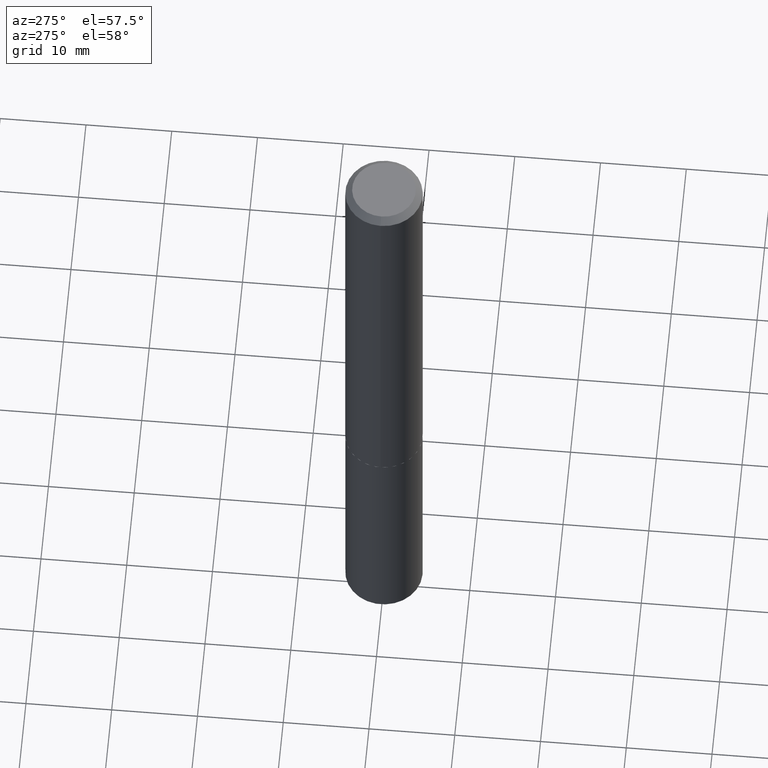
[diagram: clean part render]
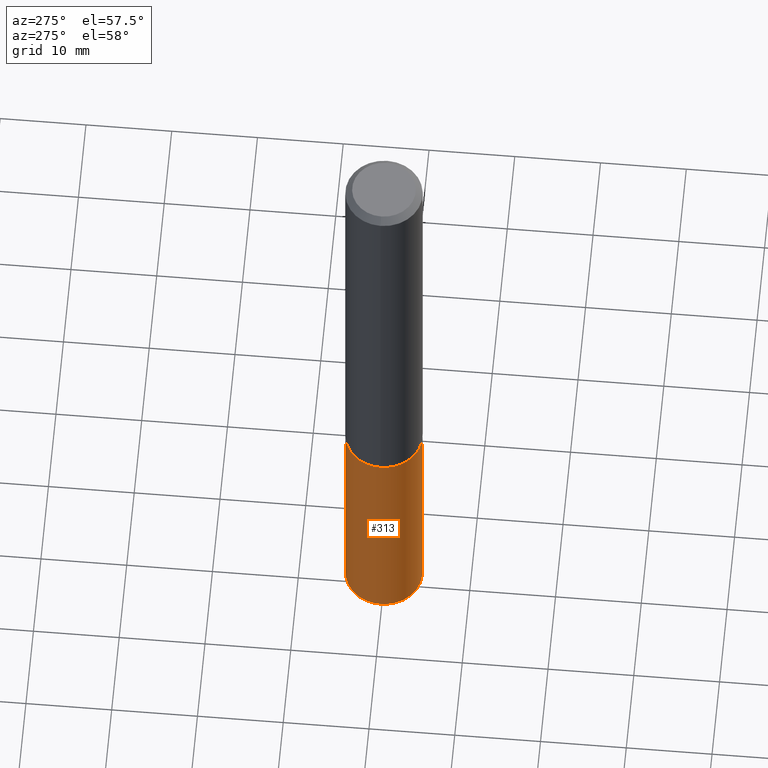
[diagram: same view with one face highlighted and labeled with its STEP entity id]
A machine part, auxiliary view. The second image highlights one B-rep face of the part: STEP entity #313.
In plain terms, the highlighted cylindrical surface (partial cylindrical patch) has radius 4.4996 mm, axis along (-0, 0, 1).
Its self-contained STEP definition (entity closure, byte-faithful):
#8 = DIRECTION ( 'NONE',  ( -6.982962677686265922E-15, -1.000000000000000000, 3.084220145260246224E-15 ) ) ;
#11 = CARTESIAN_POINT ( 'NONE',  ( 1.258726456399068374E-15, 0.1771499999999927299, -2.086600000000001121 ) ) ;
#13 = ORIENTED_EDGE ( 'NONE', *, *, #295, .F. ) ;
#35 = AXIS2_PLACEMENT_3D ( 'NONE', #359, #360, #269 ) ;
#45 = EDGE_CURVE ( 'NONE', #165, #354, #181, .T. ) ;
#67 = CARTESIAN_POINT ( 'NONE',  ( 1.258726456399096773E-15, 0.1771499999999885666, -3.251244819550088927 ) ) ;
#75 = ORIENTED_EDGE ( 'NONE', *, *, #45, .T. ) ;
#78 = ORIENTED_EDGE ( 'NONE', *, *, #267, .T. ) ;
#88 = VECTOR ( 'NONE', #89, 39.37007874015748143 ) ;
#89 = DIRECTION ( 'NONE',  ( -2.444942858903587164E-29, 3.492234525285384162E-15, 1.000000000000000000 ) ) ;
#119 = AXIS2_PLACEMENT_3D ( 'NONE', #378, #164, #285 ) ;
#142 = VERTEX_POINT ( 'NONE', #216 ) ;
#155 = EDGE_CURVE ( 'NONE', #321, #142, #274, .T. ) ;
#157 = CYLINDRICAL_SURFACE ( 'NONE', #119, 0.1771500000000000019 ) ;
#160 = ORIENTED_EDGE ( 'NONE', *, *, #155, .F. ) ;
#164 = DIRECTION ( 'NONE',  ( -2.444942858903587164E-29, 3.492234525285384557E-15, 1.000000000000000000 ) ) ;
#165 = VERTEX_POINT ( 'NONE', #67 ) ;
#179 = CARTESIAN_POINT ( 'NONE',  ( 5.102715210985907397E-29, -7.285324961630108994E-15, -2.086600000000000676 ) ) ;
#181 = CIRCLE ( 'NONE', #35, 0.1771500000000000019 ) ;
#188 = AXIS2_PLACEMENT_3D ( 'NONE', #179, #243, #8 ) ;
#193 = CARTESIAN_POINT ( 'NONE',  ( 1.258726456399097168E-15, 0.1771499999999927299, -2.086600000000001121 ) ) ;
#216 = CARTESIAN_POINT ( 'NONE',  ( -1.237031838352071118E-15, -0.1771500000000073016, -2.086600000000000232 ) ) ;
#217 = DIRECTION ( 'NONE',  ( -2.444942858903587164E-29, 3.492234525285384162E-15, 1.000000000000000000 ) ) ;
#243 = DIRECTION ( 'NONE',  ( -2.444942858903587164E-29, 3.492234525285384557E-15, 1.000000000000000000 ) ) ;
#251 = VECTOR ( 'NONE', #217, 39.37007874015748143 ) ;
#252 = FACE_OUTER_BOUND ( 'NONE', #320, .T. ) ;
#267 = EDGE_CURVE ( 'NONE', #354, #142, #343, .T. ) ;
#269 = DIRECTION ( 'NONE',  ( -6.982962677686265922E-15, -1.000000000000000000, 3.084220145260246224E-15 ) ) ;
#274 = CIRCLE ( 'NONE', #188, 0.1771500000000000019 ) ;
#280 = LINE ( 'NONE', #11, #251 ) ;
#285 = DIRECTION ( 'NONE',  ( -6.982962677686265922E-15, -1.000000000000000000, 3.084220145260246224E-15 ) ) ;
#295 = EDGE_CURVE ( 'NONE', #165, #321, #280, .T. ) ;
#313 = ADVANCED_FACE ( 'NONE', ( #252 ), #157, .T. ) ;
#320 = EDGE_LOOP ( 'NONE', ( #13, #75, #78, #160 ) ) ;
#321 = VERTEX_POINT ( 'NONE', #193 ) ;
#338 = CARTESIAN_POINT ( 'NONE',  ( -1.237031838352071118E-15, -0.1771500000000073016, -2.086600000000000232 ) ) ;
#343 = LINE ( 'NONE', #338, #88 ) ;
#347 = CARTESIAN_POINT ( 'NONE',  ( -1.237031838352041930E-15, -0.1771500000000112707, -3.251244819550088039 ) ) ;
#354 = VERTEX_POINT ( 'NONE', #347 ) ;
#359 = CARTESIAN_POINT ( 'NONE',  ( 7.950205245703951750E-29, -1.135253781015769415E-14, -3.251244819550088483 ) ) ;
#360 = DIRECTION ( 'NONE',  ( -2.444942858903587164E-29, 3.492234525285384557E-15, 1.000000000000000000 ) ) ;
#378 = CARTESIAN_POINT ( 'NONE',  ( 5.102715210985907397E-29, -7.285324961630108994E-15, -2.086600000000000676 ) ) ;